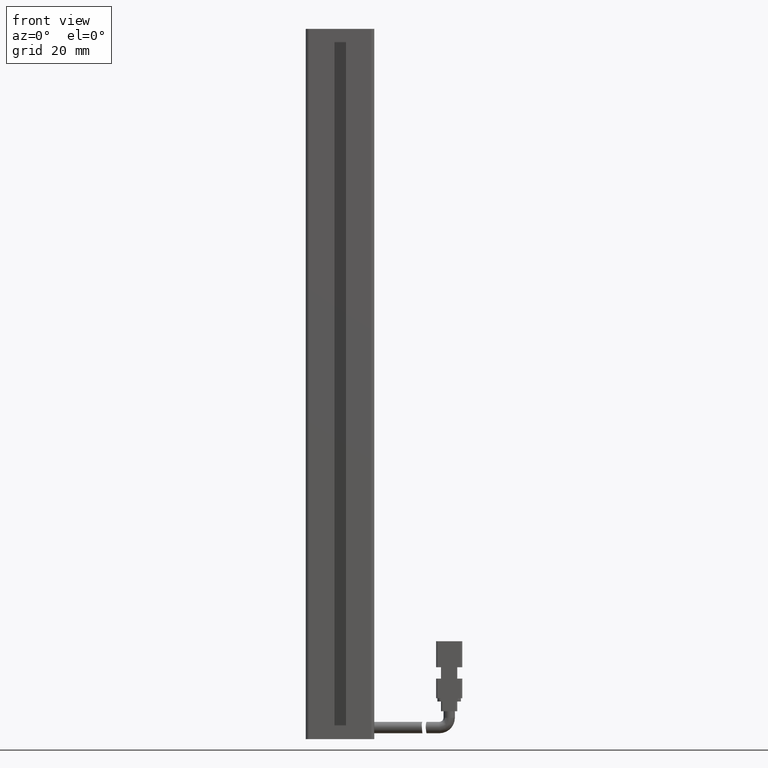
[diagram: clean part render]
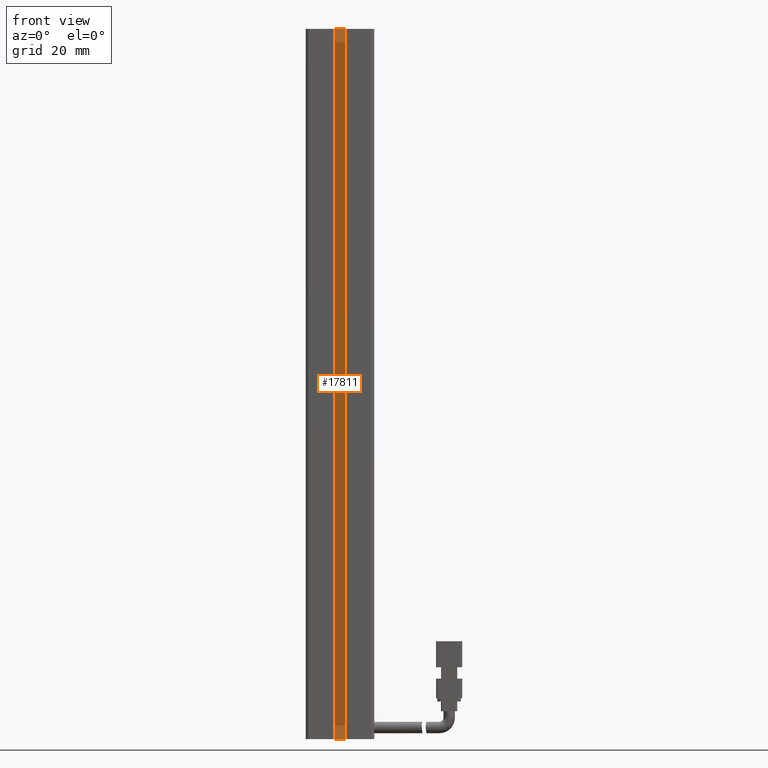
[diagram: same view with one face highlighted and labeled with its STEP entity id]
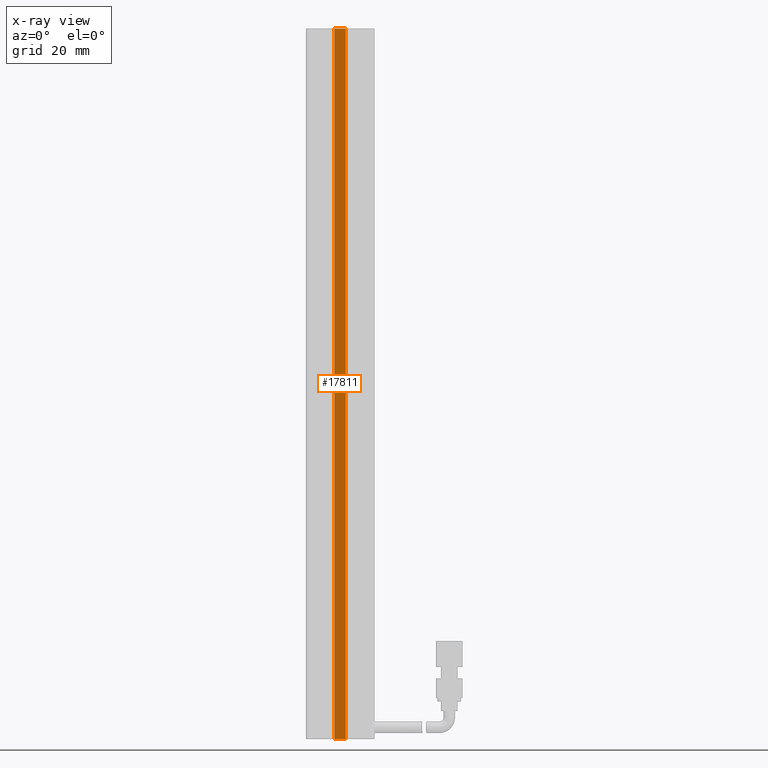
[diagram: x-ray of the same camera — body ghosted, the highlighted face saturated]
A machine part, front view. The second image highlights one B-rep face of the part: STEP entity #17811.
The next image is the same camera in x-ray: the body ghosted, the highlighted face saturated — about 0% of this face is hidden behind the body in this view.
In plain terms, the highlighted planar face has unit normal (0, 1, 0).
Its self-contained STEP definition (entity closure, byte-faithful):
#327 = LINE ( 'NONE', #34525, #3511 ) ;
#750 = CARTESIAN_POINT ( 'NONE',  ( 42.67537974683542500, 15.79073232304837000, -224.0000000000000000 ) ) ;
#1597 = VERTEX_POINT ( 'NONE', #13952 ) ;
#2063 = DIRECTION ( 'NONE',  ( -0.0000000000000000000, 0.0000000000000000000, -1.000000000000000000 ) ) ;
#3106 = CARTESIAN_POINT ( 'NONE',  ( 40.92537974683542500, 15.79073232304837000, -224.0000000000000000 ) ) ;
#3511 = VECTOR ( 'NONE', #4736, 1000.000000000000000 ) ;
#4736 = DIRECTION ( 'NONE',  ( 1.000000000000000000, 0.0000000000000000000, 0.0000000000000000000 ) ) ;
#6680 = PLANE ( 'NONE',  #25542 ) ;
#7365 = ORIENTED_EDGE ( 'NONE', *, *, #12949, .F. ) ;
#8187 = LINE ( 'NONE', #35680, #37106 ) ;
#10618 = EDGE_CURVE ( 'NONE', #1597, #52008, #327, .T. ) ;
#12224 = EDGE_CURVE ( 'NONE', #36664, #26400, #32823, .T. ) ;
#12846 = EDGE_LOOP ( 'NONE', ( #34130, #34896, #7365, #24625 ) ) ;
#12937 = DIRECTION ( 'NONE',  ( 0.0000000000000000000, -0.0000000000000000000, 1.000000000000000000 ) ) ;
#12949 = EDGE_CURVE ( 'NONE', #36664, #1597, #28542, .T. ) ;
#13159 = EDGE_CURVE ( 'NONE', #52008, #26400, #8187, .T. ) ;
#13952 = CARTESIAN_POINT ( 'NONE',  ( 39.17537974683542500, 15.79073232304837000, -6.000000000000005300 ) ) ;
#17811 = ADVANCED_FACE ( 'NONE', ( #34430 ), #6680, .F. ) ;
#18968 = CARTESIAN_POINT ( 'NONE',  ( 40.92537974683542500, 15.79073232304837000, -6.000000000000005300 ) ) ;
#21522 = CARTESIAN_POINT ( 'NONE',  ( 39.17537974683542500, 15.79073232304837000, -6.000000000000005300 ) ) ;
#24625 = ORIENTED_EDGE ( 'NONE', *, *, #12224, .T. ) ;
#25542 = AXIS2_PLACEMENT_3D ( 'NONE', #18968, #44204, #47312 ) ;
#26400 = VERTEX_POINT ( 'NONE', #750 ) ;
#28542 = LINE ( 'NONE', #21522, #50958 ) ;
#30296 = CARTESIAN_POINT ( 'NONE',  ( 42.67537974683542500, 15.79073232304837000, -6.000000000000005300 ) ) ;
#32823 = LINE ( 'NONE', #3106, #35475 ) ;
#32863 = DIRECTION ( 'NONE',  ( 1.000000000000000000, 0.0000000000000000000, 0.0000000000000000000 ) ) ;
#34130 = ORIENTED_EDGE ( 'NONE', *, *, #13159, .F. ) ;
#34430 = FACE_OUTER_BOUND ( 'NONE', #12846, .T. ) ;
#34525 = CARTESIAN_POINT ( 'NONE',  ( 40.92537974683542500, 15.79073232304837000, -6.000000000000005300 ) ) ;
#34896 = ORIENTED_EDGE ( 'NONE', *, *, #10618, .F. ) ;
#35475 = VECTOR ( 'NONE', #32863, 1000.000000000000000 ) ;
#35680 = CARTESIAN_POINT ( 'NONE',  ( 42.67537974683542500, 15.79073232304837000, -6.000000000000005300 ) ) ;
#36664 = VERTEX_POINT ( 'NONE', #46280 ) ;
#37106 = VECTOR ( 'NONE', #2063, 1000.000000000000000 ) ;
#44204 = DIRECTION ( 'NONE',  ( 0.0000000000000000000, 1.000000000000000000, 0.0000000000000000000 ) ) ;
#46280 = CARTESIAN_POINT ( 'NONE',  ( 39.17537974683542500, 15.79073232304837000, -224.0000000000000000 ) ) ;
#47312 = DIRECTION ( 'NONE',  ( 0.0000000000000000000, -0.0000000000000000000, 1.000000000000000000 ) ) ;
#50958 = VECTOR ( 'NONE', #12937, 1000.000000000000000 ) ;
#52008 = VERTEX_POINT ( 'NONE', #30296 ) ;